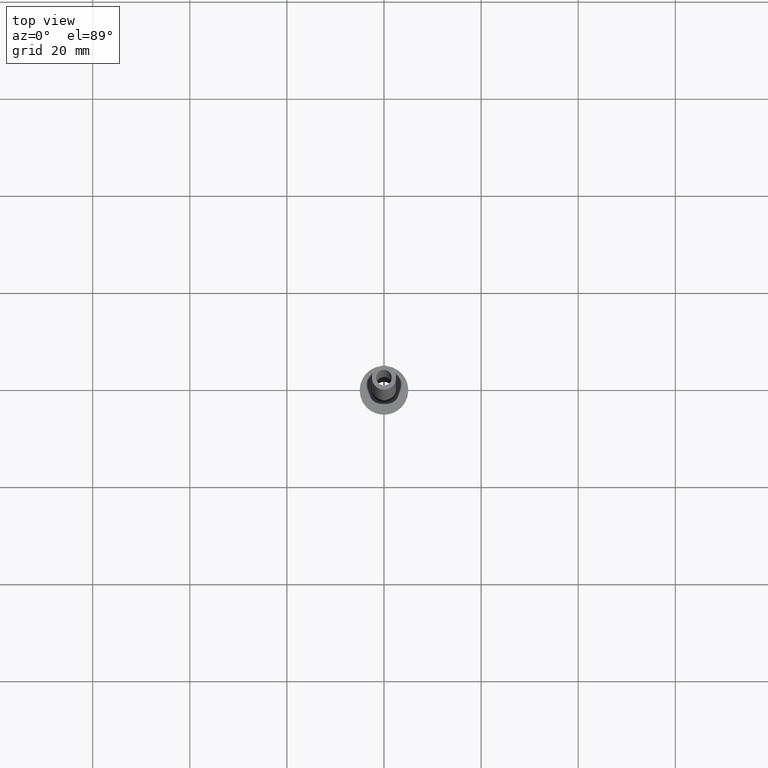
[diagram: clean part render]
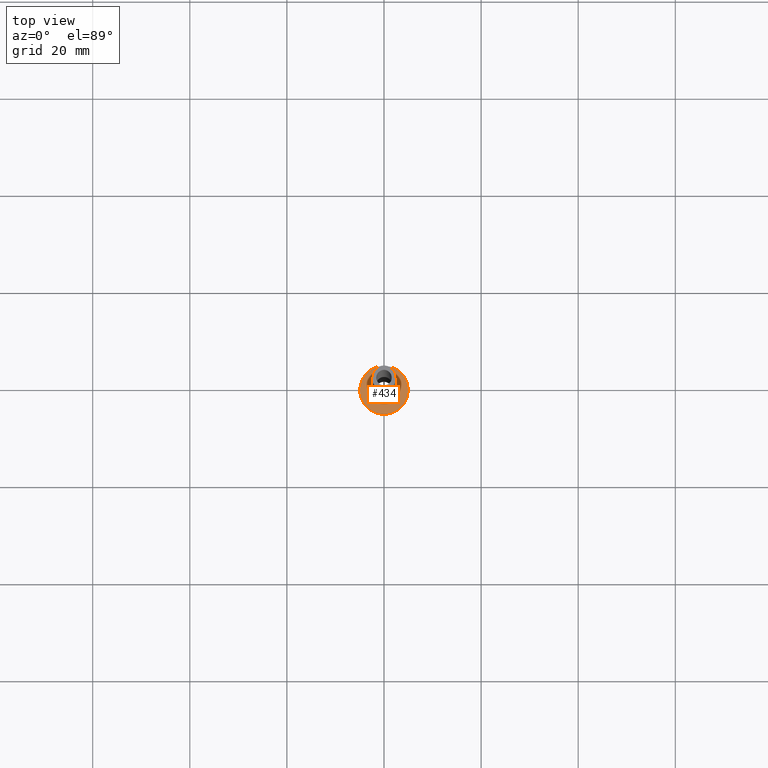
[diagram: same view with one face highlighted and labeled with its STEP entity id]
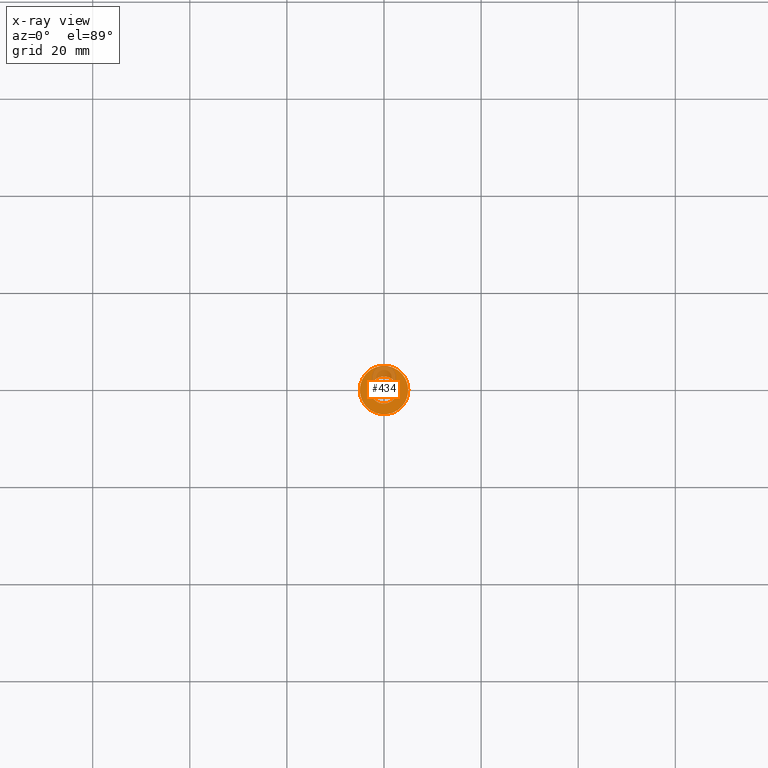
[diagram: x-ray of the same camera — body ghosted, the highlighted face saturated]
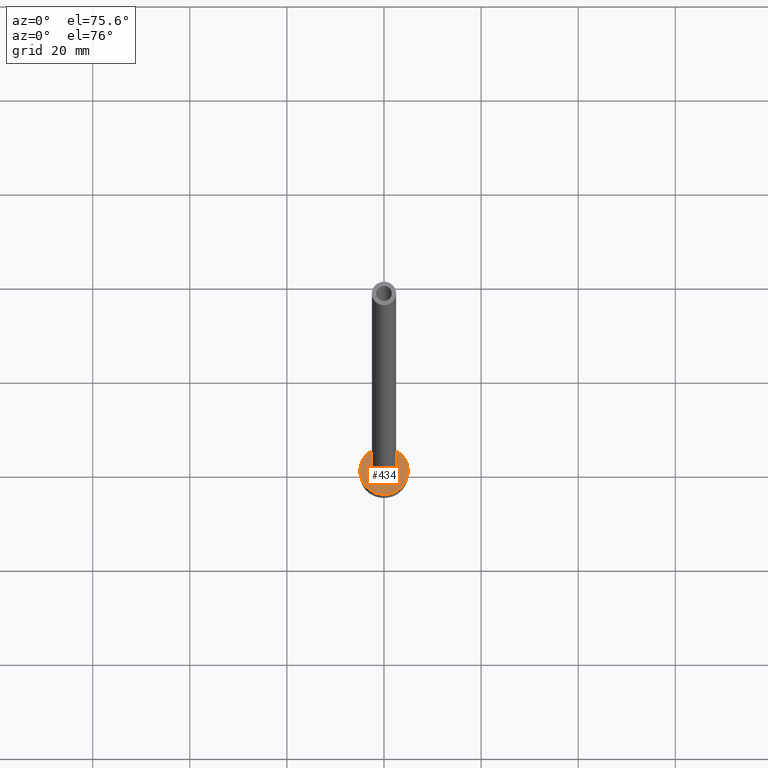
[diagram: same view with one face highlighted and labeled with its STEP entity id]
A machine part, top view. The second image highlights one B-rep face of the part: STEP entity #434.
The next image is the same camera in x-ray: the body ghosted, the highlighted face saturated — about 20% of this face is hidden behind the body in this view.
A second angle (auxiliary view) of the same face is appended — the face is thin or edge-on in the first view.
In plain terms, the highlighted planar face has unit normal (0, 0, 1).
Its self-contained STEP definition (entity closure, byte-faithful):
#6 = DIRECTION ( 'NONE',  ( 1.000000000000000000, 0.000000000000000000, -0.000000000000000000 ) ) ;
#10 = DIRECTION ( 'NONE',  ( 1.000000000000000000, 0.000000000000000000, 0.000000000000000000 ) ) ;
#12 = DIRECTION ( 'NONE',  ( 1.000000000000000000, 0.000000000000000000, 0.000000000000000000 ) ) ;
#22 = CARTESIAN_POINT ( 'NONE',  ( 5.000000000000000000, 6.123233995736766282E-16, 3.000000000000000000 ) ) ;
#29 = DIRECTION ( 'NONE',  ( 0.000000000000000000, 0.000000000000000000, 1.000000000000000000 ) ) ;
#35 = VERTEX_POINT ( 'NONE', #155 ) ;
#41 = VERTEX_POINT ( 'NONE', #22 ) ;
#43 = CIRCLE ( 'NONE', #355, 2.799999999999999822 ) ;
#45 = EDGE_LOOP ( 'NONE', ( #289, #216 ) ) ;
#48 = DIRECTION ( 'NONE',  ( 0.000000000000000000, 0.000000000000000000, 1.000000000000000000 ) ) ;
#51 = DIRECTION ( 'NONE',  ( 1.000000000000000000, 0.000000000000000000, 0.000000000000000000 ) ) ;
#58 = DIRECTION ( 'NONE',  ( -0.000000000000000000, -0.000000000000000000, -1.000000000000000000 ) ) ;
#60 = EDGE_CURVE ( 'NONE', #35, #149, #166, .T. ) ;
#68 = EDGE_LOOP ( 'NONE', ( #182, #80 ) ) ;
#74 = CARTESIAN_POINT ( 'NONE',  ( 0.000000000000000000, 0.000000000000000000, 3.000000000000000000 ) ) ;
#80 = ORIENTED_EDGE ( 'NONE', *, *, #274, .T. ) ;
#86 = CARTESIAN_POINT ( 'NONE',  ( -5.000000000000000000, 0.000000000000000000, 3.000000000000000000 ) ) ;
#96 = CARTESIAN_POINT ( 'NONE',  ( 0.000000000000000000, 0.000000000000000000, 3.000000000000000000 ) ) ;
#105 = EDGE_CURVE ( 'NONE', #273, #41, #385, .T. ) ;
#113 = CARTESIAN_POINT ( 'NONE',  ( 0.000000000000000000, 0.000000000000000000, 3.000000000000000000 ) ) ;
#130 = AXIS2_PLACEMENT_3D ( 'NONE', #96, #58, #51 ) ;
#142 = FACE_OUTER_BOUND ( 'NONE', #68, .T. ) ;
#147 = CIRCLE ( 'NONE', #186, 5.000000000000000000 ) ;
#148 = DIRECTION ( 'NONE',  ( -0.000000000000000000, -0.000000000000000000, -1.000000000000000000 ) ) ;
#149 = VERTEX_POINT ( 'NONE', #160 ) ;
#155 = CARTESIAN_POINT ( 'NONE',  ( -2.799999999999999822, 3.429011037612589276E-16, 2.999999999999998668 ) ) ;
#160 = CARTESIAN_POINT ( 'NONE',  ( 2.799999999999999822, 0.000000000000000000, 2.999999999999998668 ) ) ;
#166 = CIRCLE ( 'NONE', #130, 2.799999999999999822 ) ;
#182 = ORIENTED_EDGE ( 'NONE', *, *, #105, .T. ) ;
#186 = AXIS2_PLACEMENT_3D ( 'NONE', #74, #48, #10 ) ;
#192 = AXIS2_PLACEMENT_3D ( 'NONE', #379, #29, #200 ) ;
#200 = DIRECTION ( 'NONE',  ( 1.000000000000000000, 0.000000000000000000, 0.000000000000000000 ) ) ;
#216 = ORIENTED_EDGE ( 'NONE', *, *, #60, .T. ) ;
#218 = CARTESIAN_POINT ( 'NONE',  ( 0.000000000000000000, 0.000000000000000000, 3.000000000000000000 ) ) ;
#247 = AXIS2_PLACEMENT_3D ( 'NONE', #113, #429, #6 ) ;
#273 = VERTEX_POINT ( 'NONE', #86 ) ;
#274 = EDGE_CURVE ( 'NONE', #41, #273, #147, .T. ) ;
#280 = PLANE ( 'NONE',  #247 ) ;
#289 = ORIENTED_EDGE ( 'NONE', *, *, #375, .T. ) ;
#322 = FACE_BOUND ( 'NONE', #45, .T. ) ;
#355 = AXIS2_PLACEMENT_3D ( 'NONE', #218, #148, #12 ) ;
#375 = EDGE_CURVE ( 'NONE', #149, #35, #43, .T. ) ;
#379 = CARTESIAN_POINT ( 'NONE',  ( 0.000000000000000000, 0.000000000000000000, 3.000000000000000000 ) ) ;
#385 = CIRCLE ( 'NONE', #192, 5.000000000000000000 ) ;
#429 = DIRECTION ( 'NONE',  ( 0.000000000000000000, 0.000000000000000000, 1.000000000000000000 ) ) ;
#434 = ADVANCED_FACE ( 'NONE', ( #322, #142 ), #280, .T. ) ;